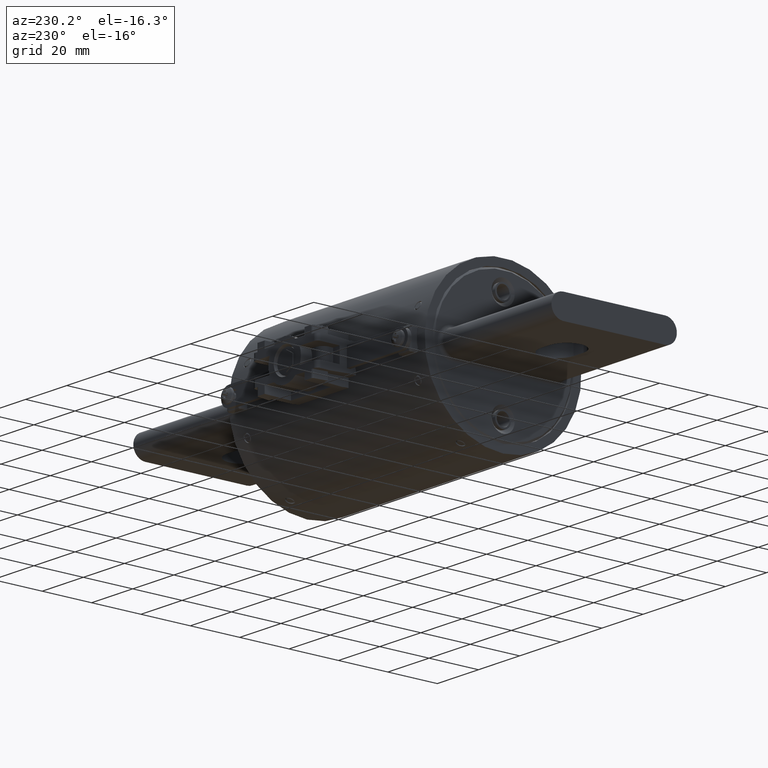
[diagram: clean part render]
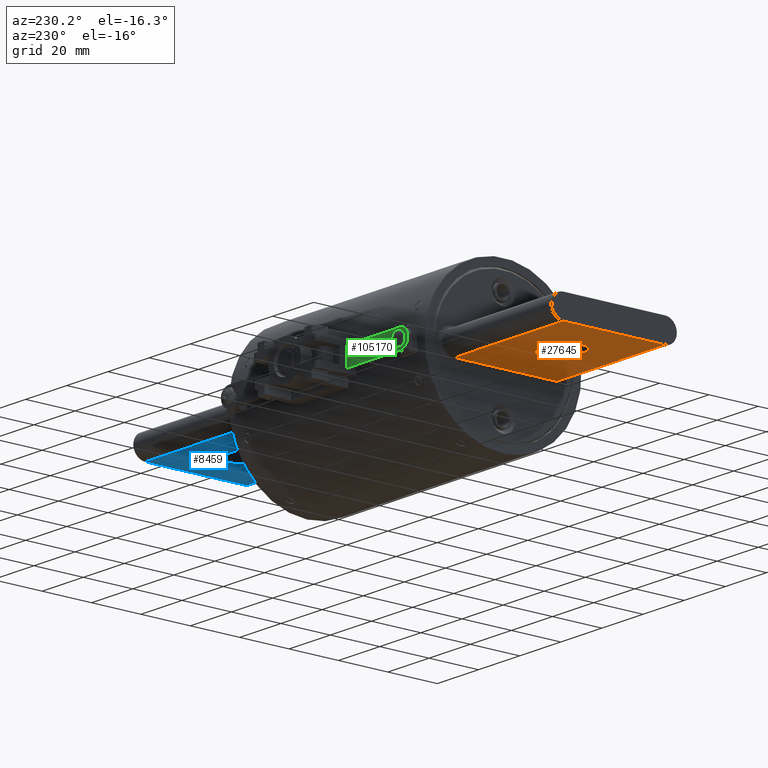
[diagram: same view with three faces highlighted in distinct colors, each labeled with its STEP entity id]
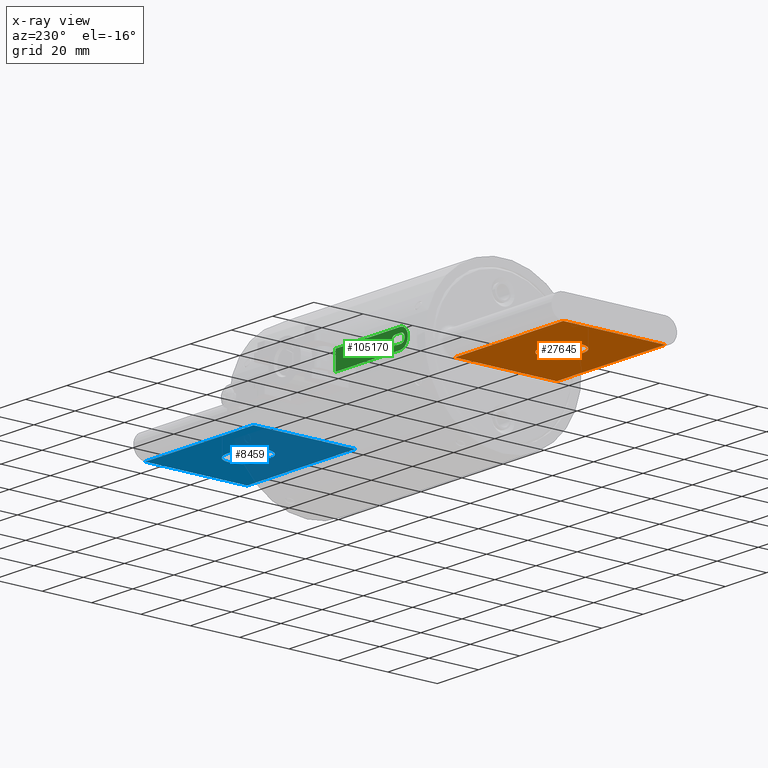
[diagram: x-ray of the same camera — body ghosted, the three highlighted faces saturated]
A machine part, auxiliary view with three faces highlighted in distinct colors.
The next image is the same camera in x-ray (body ghosted, the three faces saturated) — at least one of them is partly hidden behind the body in this view.
Their STEP definitions:

[orange] entity #27645 — the highlighted planar face has unit normal (-0, 0, 1).
#40 = CARTESIAN_POINT ( 'NONE',  ( -2.124999999999997800, -0.8125000000000007800, -0.1875000000000196200 ) ) ;
#3193 = VECTOR ( 'NONE', #130843, 39.37007874015748100 ) ;
#4480 = ORIENTED_EDGE ( 'NONE', *, *, #137972, .F. ) ;
#5079 = CARTESIAN_POINT ( 'NONE',  ( -1.030999999999997900, -0.2660000000000006200, -0.1875000000000100500 ) ) ;
#6596 = LINE ( 'NONE', #76395, #3193 ) ;
#8107 = EDGE_CURVE ( 'NONE', #44071, #102888, #70710, .T. ) ;
#9801 = VERTEX_POINT ( 'NONE', #106414 ) ;
#10438 = DIRECTION ( 'NONE',  ( -1.047444401652940800E-014, 3.491481338843133000E-015, 1.000000000000000000 ) ) ;
#12294 = CARTESIAN_POINT ( 'NONE',  ( -1.218999999999998100, -0.2660000000000006200, -0.1875000000000120500 ) ) ;
#16265 = VERTEX_POINT ( 'NONE', #21702 ) ;
#16715 = ORIENTED_EDGE ( 'NONE', *, *, #131360, .F. ) ;
#18241 = VERTEX_POINT ( 'NONE', #47215 ) ;
#18271 = CARTESIAN_POINT ( 'NONE',  ( -2.124999999999997800, 0.8124999999999992200, -0.1875000000000253100 ) ) ;
#21702 = CARTESIAN_POINT ( 'NONE',  ( -0.04999999999999805300, 0.8124999999999992200, -0.1875000000000035500 ) ) ;
#22355 = CARTESIAN_POINT ( 'NONE',  ( -0.04999999999999805300, -0.8125000000000007800, -0.1874999999999978600 ) ) ;
#23740 = AXIS2_PLACEMENT_3D ( 'NONE', #29947, #105837, #40838 ) ;
#24064 = VECTOR ( 'NONE', #33268, 39.37007874015748100 ) ;
#25249 = LINE ( 'NONE', #40, #82989 ) ;
#25641 = DIRECTION ( 'NONE',  ( 1.000000000000000000, 5.175990528556192900E-030, 1.047444401652940800E-014 ) ) ;
#27645 = ADVANCED_FACE ( 'NONE', ( #39520, #122670 ), #96719, .F. ) ;
#29947 = CARTESIAN_POINT ( 'NONE',  ( -1.030999999999997900, -6.546527510330934200E-016, -0.1875000000000109600 ) ) ;
#30498 = EDGE_CURVE ( 'NONE', #60713, #16265, #79932, .T. ) ;
#30793 = ORIENTED_EDGE ( 'NONE', *, *, #57692, .F. ) ;
#33268 = DIRECTION ( 'NONE',  ( -4.304131397916473100E-029, -1.000000000000000000, 3.491481338843133000E-015 ) ) ;
#34362 = CARTESIAN_POINT ( 'NONE',  ( -1.218999999999998100, -6.546527510330939100E-016, -0.1875000000000129600 ) ) ;
#39520 = FACE_BOUND ( 'NONE', #91521, .T. ) ;
#39538 = AXIS2_PLACEMENT_3D ( 'NONE', #75397, #10438, #86321 ) ;
#40838 = DIRECTION ( 'NONE',  ( 1.000000000000000000, 5.016927212896713300E-030, 1.052685787032282000E-014 ) ) ;
#41436 = CARTESIAN_POINT ( 'NONE',  ( -1.030999999999997900, 0.2659999999999993500, -0.1875000000000119100 ) ) ;
#44046 = CIRCLE ( 'NONE', #56456, 0.2659999999999999600 ) ;
#44071 = VERTEX_POINT ( 'NONE', #41436 ) ;
#44236 = VECTOR ( 'NONE', #101815, 39.37007874015748100 ) ;
#44925 = ORIENTED_EDGE ( 'NONE', *, *, #97193, .F. ) ;
#45254 = DIRECTION ( 'NONE',  ( 1.000000000000000000, 5.016927212896713300E-030, 1.052685787032282000E-014 ) ) ;
#47002 = CARTESIAN_POINT ( 'NONE',  ( -2.124999999999997800, 0.8124999999999992200, -0.1875000000000253100 ) ) ;
#47215 = CARTESIAN_POINT ( 'NONE',  ( -1.218999999999998100, 0.2659999999999994000, -0.1875000000000138800 ) ) ;
#56241 = VERTEX_POINT ( 'NONE', #12294 ) ;
#56456 = AXIS2_PLACEMENT_3D ( 'NONE', #34362, #110269, #45254 ) ;
#57692 = EDGE_CURVE ( 'NONE', #135122, #9801, #25249, .T. ) ;
#60713 = VERTEX_POINT ( 'NONE', #18271 ) ;
#64344 = ORIENTED_EDGE ( 'NONE', *, *, #89829, .T. ) ;
#70710 = CIRCLE ( 'NONE', #23740, 0.2659999999999999600 ) ;
#71217 = ORIENTED_EDGE ( 'NONE', *, *, #8107, .F. ) ;
#72375 = ORIENTED_EDGE ( 'NONE', *, *, #96438, .F. ) ;
#72400 = CARTESIAN_POINT ( 'NONE',  ( -1.218999999999998100, 0.2659999999999994000, -0.1875000000000138800 ) ) ;
#75397 = CARTESIAN_POINT ( 'NONE',  ( -2.124999999999997800, -0.8125000000000007800, -0.1875000000000196200 ) ) ;
#76395 = CARTESIAN_POINT ( 'NONE',  ( -1.218999999999998100, -0.2660000000000006200, -0.1875000000000120500 ) ) ;
#79932 = LINE ( 'NONE', #47002, #134140 ) ;
#82982 = ORIENTED_EDGE ( 'NONE', *, *, #30498, .T. ) ;
#82989 = VECTOR ( 'NONE', #140278, 39.37007874015748100 ) ;
#86321 = DIRECTION ( 'NONE',  ( -1.000000000000000000, -5.175990528556192900E-030, -1.047444401652940800E-014 ) ) ;
#86377 = EDGE_LOOP ( 'NONE', ( #82982, #64344, #30793, #72375 ) ) ;
#89829 = EDGE_CURVE ( 'NONE', #16265, #9801, #107250, .T. ) ;
#90871 = CARTESIAN_POINT ( 'NONE',  ( -2.124999999999997800, -0.8125000000000007800, -0.1875000000000196200 ) ) ;
#91521 = EDGE_LOOP ( 'NONE', ( #16715, #4480, #44925, #71217 ) ) ;
#96438 = EDGE_CURVE ( 'NONE', #60713, #135122, #127407, .T. ) ;
#96719 = PLANE ( 'NONE',  #39538 ) ;
#97193 = EDGE_CURVE ( 'NONE', #102888, #56241, #6596, .T. ) ;
#97718 = LINE ( 'NONE', #72400, #126532 ) ;
#101815 = DIRECTION ( 'NONE',  ( -4.304131397916473100E-029, -1.000000000000000000, 3.491481338843133000E-015 ) ) ;
#102888 = VERTEX_POINT ( 'NONE', #5079 ) ;
#105837 = DIRECTION ( 'NONE',  ( 1.047444401652939400E-014, -3.491481338843133400E-015, -1.000000000000000000 ) ) ;
#106414 = CARTESIAN_POINT ( 'NONE',  ( -0.04999999999999805300, -0.8125000000000007800, -0.1874999999999978600 ) ) ;
#107250 = LINE ( 'NONE', #22355, #24064 ) ;
#110269 = DIRECTION ( 'NONE',  ( 1.047444401652939400E-014, -3.491481338843133400E-015, -1.000000000000000000 ) ) ;
#111363 = CARTESIAN_POINT ( 'NONE',  ( -2.124999999999997800, -0.8125000000000007800, -0.1875000000000196200 ) ) ;
#122670 = FACE_OUTER_BOUND ( 'NONE', #86377, .T. ) ;
#126532 = VECTOR ( 'NONE', #137239, 39.37007874015748100 ) ;
#127407 = LINE ( 'NONE', #90871, #44236 ) ;
#130843 = DIRECTION ( 'NONE',  ( -1.000000000000000000, -5.175990528556192900E-030, -1.047444401652940800E-014 ) ) ;
#131360 = EDGE_CURVE ( 'NONE', #18241, #44071, #97718, .T. ) ;
#134140 = VECTOR ( 'NONE', #25641, 39.37007874015748100 ) ;
#135122 = VERTEX_POINT ( 'NONE', #111363 ) ;
#137239 = DIRECTION ( 'NONE',  ( 1.000000000000000000, -3.632776587319446900E-016, 1.047444401652941000E-014 ) ) ;
#137972 = EDGE_CURVE ( 'NONE', #56241, #18241, #44046, .T. ) ;
#140278 = DIRECTION ( 'NONE',  ( 1.000000000000000000, 5.175990528556192900E-030, 1.047444401652940800E-014 ) ) ;

[blue] entity #8459 — the highlighted planar face has unit normal (0, -0, 1).
#1190 = ORIENTED_EDGE ( 'NONE', *, *, #54128, .T. ) ;
#1974 = DIRECTION ( 'NONE',  ( 1.023891520009880200E-016, -2.751677744369212900E-032, 1.000000000000000000 ) ) ;
#5203 = CARTESIAN_POINT ( 'NONE',  ( 4.781000000000000600, -0.2660000000000000700, -0.1875000000000616700 ) ) ;
#7477 = VERTEX_POINT ( 'NONE', #17804 ) ;
#8459 = ADVANCED_FACE ( 'NONE', ( #75937, #46996 ), #44583, .F. ) ;
#11441 = CARTESIAN_POINT ( 'NONE',  ( 4.969000000000000300, 0.2659999999999998500, -0.1875000000000617300 ) ) ;
#12807 = VECTOR ( 'NONE', #52706, 39.37007874015748100 ) ;
#17804 = CARTESIAN_POINT ( 'NONE',  ( 5.875000000000000000, 0.8124999999999998900, -0.1875000000000616500 ) ) ;
#18193 = CARTESIAN_POINT ( 'NONE',  ( 5.875000000000000000, -0.8125000000000001100, -0.1875000000000616500 ) ) ;
#18355 = VECTOR ( 'NONE', #89663, 39.37007874015748100 ) ;
#19350 = DIRECTION ( 'NONE',  ( -6.718675002647231700E-017, 1.000000000000000000, -2.751677744369046000E-032 ) ) ;
#22194 = EDGE_LOOP ( 'NONE', ( #1190, #132629, #76787, #68336 ) ) ;
#22218 = CARTESIAN_POINT ( 'NONE',  ( 4.969000000000000300, -0.2660000000000002400, -0.1875000000000617300 ) ) ;
#24734 = CIRCLE ( 'NONE', #133130, 0.2659999999999998500 ) ;
#29312 = EDGE_CURVE ( 'NONE', #109444, #67301, #109212, .T. ) ;
#31084 = VECTOR ( 'NONE', #95616, 39.37007874015748100 ) ;
#34914 = ORIENTED_EDGE ( 'NONE', *, *, #119446, .T. ) ;
#34992 = EDGE_CURVE ( 'NONE', #57451, #97186, #24734, .T. ) ;
#38132 = ORIENTED_EDGE ( 'NONE', *, *, #79315, .F. ) ;
#43312 = DIRECTION ( 'NONE',  ( 1.023891520011291200E-016, -2.751677744368264800E-032, 1.000000000000000000 ) ) ;
#44583 = PLANE ( 'NONE',  #93753 ) ;
#46412 = CARTESIAN_POINT ( 'NONE',  ( 4.781000000000000600, 0.2659999999999998500, -0.1875000000000616700 ) ) ;
#46527 = LINE ( 'NONE', #95204, #129731 ) ;
#46996 = FACE_OUTER_BOUND ( 'NONE', #89753, .T. ) ;
#47604 = VECTOR ( 'NONE', #94928, 39.37007874015748100 ) ;
#49040 = CARTESIAN_POINT ( 'NONE',  ( 5.875000000000000000, 0.8124999999999998900, -0.1875000000000616500 ) ) ;
#50996 = ORIENTED_EDGE ( 'NONE', *, *, #130349, .T. ) ;
#51020 = LINE ( 'NONE', #84052, #47604 ) ;
#51392 = ORIENTED_EDGE ( 'NONE', *, *, #68819, .F. ) ;
#52706 = DIRECTION ( 'NONE',  ( 1.000000000000000000, 6.718675002655119100E-017, -1.023891520009880200E-016 ) ) ;
#53572 = DIRECTION ( 'NONE',  ( 1.023891520011291200E-016, -2.751677744368264800E-032, 1.000000000000000000 ) ) ;
#53719 = CARTESIAN_POINT ( 'NONE',  ( 3.799999999999999800, 0.8124999999999997800, -0.1875000000000615900 ) ) ;
#54128 = EDGE_CURVE ( 'NONE', #67301, #57451, #99278, .T. ) ;
#56110 = CARTESIAN_POINT ( 'NONE',  ( 3.800000000000000300, -0.8125000000000003300, -0.1875000000000615900 ) ) ;
#57451 = VERTEX_POINT ( 'NONE', #22218 ) ;
#66873 = CARTESIAN_POINT ( 'NONE',  ( 5.875000000000000000, -0.8125000000000001100, -0.1875000000000616500 ) ) ;
#67301 = VERTEX_POINT ( 'NONE', #5203 ) ;
#68336 = ORIENTED_EDGE ( 'NONE', *, *, #29312, .T. ) ;
#68819 = EDGE_CURVE ( 'NONE', #104650, #7477, #46527, .T. ) ;
#73481 = LINE ( 'NONE', #49040, #102273 ) ;
#75937 = FACE_BOUND ( 'NONE', #22194, .T. ) ;
#76087 = LINE ( 'NONE', #78719, #18355 ) ;
#76787 = ORIENTED_EDGE ( 'NONE', *, *, #110456, .T. ) ;
#77778 = DIRECTION ( 'NONE',  ( -1.000000000000000000, -6.718675002655119100E-017, 1.023891520009880200E-016 ) ) ;
#77818 = VERTEX_POINT ( 'NONE', #56110 ) ;
#78719 = CARTESIAN_POINT ( 'NONE',  ( 3.799999999999999800, 0.8124999999999997800, -0.1875000000000615900 ) ) ;
#79315 = EDGE_CURVE ( 'NONE', #7477, #104850, #73481, .T. ) ;
#84052 = CARTESIAN_POINT ( 'NONE',  ( 5.875000000000000000, 0.2660000000000002400, -0.1875000000000616500 ) ) ;
#85238 = CARTESIAN_POINT ( 'NONE',  ( 5.875000000000000000, -0.8125000000000001100, -0.1875000000000616500 ) ) ;
#89663 = DIRECTION ( 'NONE',  ( -6.718675002647231700E-017, 1.000000000000000000, -2.751677744369046000E-032 ) ) ;
#89753 = EDGE_LOOP ( 'NONE', ( #34914, #50996, #38132, #51392 ) ) ;
#93753 = AXIS2_PLACEMENT_3D ( 'NONE', #66873, #1974, #77778 ) ;
#94928 = DIRECTION ( 'NONE',  ( -1.000000000000000000, -4.304644087585011000E-016, 1.023891520009880200E-016 ) ) ;
#95204 = CARTESIAN_POINT ( 'NONE',  ( 5.875000000000000000, -0.8125000000000001100, -0.1875000000000616500 ) ) ;
#95616 = DIRECTION ( 'NONE',  ( -1.000000000000000000, -6.718675002655119100E-017, 1.023891520009880200E-016 ) ) ;
#97186 = VERTEX_POINT ( 'NONE', #11441 ) ;
#99278 = LINE ( 'NONE', #139409, #12807 ) ;
#102273 = VECTOR ( 'NONE', #114058, 39.37007874015748100 ) ;
#104650 = VERTEX_POINT ( 'NONE', #18193 ) ;
#104850 = VERTEX_POINT ( 'NONE', #53719 ) ;
#108275 = CARTESIAN_POINT ( 'NONE',  ( 4.969000000000000300, -9.199468167722894700E-017, -0.1875000000000617300 ) ) ;
#109212 = CIRCLE ( 'NONE', #138791, 0.2659999999999998500 ) ;
#109444 = VERTEX_POINT ( 'NONE', #46412 ) ;
#110456 = EDGE_CURVE ( 'NONE', #97186, #109444, #51020, .T. ) ;
#114058 = DIRECTION ( 'NONE',  ( -1.000000000000000000, -6.718675002655119100E-017, 1.023891520009880200E-016 ) ) ;
#114267 = LINE ( 'NONE', #85238, #31084 ) ;
#118556 = CARTESIAN_POINT ( 'NONE',  ( 4.781000000000000600, -1.046257906822207300E-016, -0.1875000000000616700 ) ) ;
#119214 = DIRECTION ( 'NONE',  ( -1.000000000000000000, -6.718675002655122800E-017, 1.283763154917417700E-016 ) ) ;
#119446 = EDGE_CURVE ( 'NONE', #104650, #77818, #114267, .T. ) ;
#129427 = DIRECTION ( 'NONE',  ( -1.000000000000000000, -6.718675002655122800E-017, 1.283763154917417700E-016 ) ) ;
#129731 = VECTOR ( 'NONE', #19350, 39.37007874015748100 ) ;
#130349 = EDGE_CURVE ( 'NONE', #77818, #104850, #76087, .T. ) ;
#132629 = ORIENTED_EDGE ( 'NONE', *, *, #34992, .T. ) ;
#133130 = AXIS2_PLACEMENT_3D ( 'NONE', #108275, #43312, #119214 ) ;
#138791 = AXIS2_PLACEMENT_3D ( 'NONE', #118556, #53572, #129427 ) ;
#139409 = CARTESIAN_POINT ( 'NONE',  ( 5.875000000000000000, -0.2660000000000001300, -0.1875000000000616500 ) ) ;

[green] entity #105170 — the highlighted planar face has unit normal (-0, -1, 0).
#5280 = DIRECTION ( 'NONE',  ( -1.000000000000000000, 3.381628675776319700E-018, -3.593048753054327700E-033 ) ) ;
#5806 = CIRCLE ( 'NONE', #74715, 0.07000000000000000700 ) ;
#10759 = LINE ( 'NONE', #58923, #93836 ) ;
#12719 = FACE_BOUND ( 'NONE', #115311, .T. ) ;
#12848 = ORIENTED_EDGE ( 'NONE', *, *, #95447, .F. ) ;
#14075 = VERTEX_POINT ( 'NONE', #15497 ) ;
#14376 = LINE ( 'NONE', #40105, #39749 ) ;
#15497 = CARTESIAN_POINT ( 'NONE',  ( 1.468628826300588400, 1.445273281310191200, -0.1480000000000001300 ) ) ;
#20498 = EDGE_CURVE ( 'NONE', #87316, #26416, #5806, .T. ) ;
#20861 = CARTESIAN_POINT ( 'NONE',  ( 0.3295000000000007400, 1.445273281310192900, -0.07000000000000000700 ) ) ;
#21148 = ORIENTED_EDGE ( 'NONE', *, *, #59664, .F. ) ;
#26416 = VERTEX_POINT ( 'NONE', #20861 ) ;
#26583 = CIRCLE ( 'NONE', #130880, 0.07000000000000000700 ) ;
#27363 = CARTESIAN_POINT ( 'NONE',  ( 0.2364017407724567600, 1.445273281310192900, -0.1480000000000001300 ) ) ;
#29410 = LINE ( 'NONE', #62732, #54859 ) ;
#29543 = CARTESIAN_POINT ( 'NONE',  ( 0.2195000000000005600, 1.445273281310192900, -0.07000000000000000700 ) ) ;
#30828 = CARTESIAN_POINT ( 'NONE',  ( 1.468628826300588400, 1.445273281310191200, 0.1479999999999998800 ) ) ;
#32135 = EDGE_CURVE ( 'NONE', #40743, #87316, #35165, .T. ) ;
#33873 = DIRECTION ( 'NONE',  ( 1.000000000000000000, 9.374304259501944500E-018, 3.549732459326507900E-033 ) ) ;
#34316 = CARTESIAN_POINT ( 'NONE',  ( 0.2195000000000005600, 1.445273281310192900, 0.07000000000000000700 ) ) ;
#34439 = VERTEX_POINT ( 'NONE', #41611 ) ;
#35165 = LINE ( 'NONE', #34316, #92883 ) ;
#38043 = CARTESIAN_POINT ( 'NONE',  ( 0.08840174077245653600, 1.445273281310192900, 0.1479999999999998800 ) ) ;
#38460 = CARTESIAN_POINT ( 'NONE',  ( 0.2195000000000005600, 1.445273281310192900, 0.0000000000000000000 ) ) ;
#39749 = VECTOR ( 'NONE', #105139, 39.37007874015748100 ) ;
#40105 = CARTESIAN_POINT ( 'NONE',  ( 0.08840174077245653600, 1.445273281310192900, -0.1480000000000001300 ) ) ;
#40743 = VERTEX_POINT ( 'NONE', #49244 ) ;
#41611 = CARTESIAN_POINT ( 'NONE',  ( 0.2364017407724567600, 1.445273281310192900, 0.1479999999999998800 ) ) ;
#45083 = ORIENTED_EDGE ( 'NONE', *, *, #78050, .F. ) ;
#46896 = CARTESIAN_POINT ( 'NONE',  ( 0.3295000000000007400, 1.445273281310192900, 0.0000000000000000000 ) ) ;
#46906 = CARTESIAN_POINT ( 'NONE',  ( 0.2364017407724567600, 1.445273281310192900, 8.537024980200822600E-018 ) ) ;
#48327 = AXIS2_PLACEMENT_3D ( 'NONE', #135056, #70229, #5280 ) ;
#49192 = AXIS2_PLACEMENT_3D ( 'NONE', #46906, #122796, #57835 ) ;
#49244 = CARTESIAN_POINT ( 'NONE',  ( 0.2195000000000005600, 1.445273281310192900, 0.07000000000000000700 ) ) ;
#49368 = DIRECTION ( 'NONE',  ( 1.000000000000000000, 0.0000000000000000000, 3.549732459326508600E-033 ) ) ;
#51157 = ORIENTED_EDGE ( 'NONE', *, *, #66436, .F. ) ;
#54859 = VECTOR ( 'NONE', #73673, 39.37007874015748100 ) ;
#57824 = DIRECTION ( 'NONE',  ( 1.000000000000000000, 0.0000000000000000000, 3.549732459326508600E-033 ) ) ;
#57835 = DIRECTION ( 'NONE',  ( 1.000000000000000000, 0.0000000000000000000, 0.0000000000000000000 ) ) ;
#58923 = CARTESIAN_POINT ( 'NONE',  ( 1.468628826300588400, 1.445273281310191200, -0.1480000000000001300 ) ) ;
#59664 = EDGE_CURVE ( 'NONE', #81078, #14075, #14376, .T. ) ;
#62732 = CARTESIAN_POINT ( 'NONE',  ( 0.2195000000000005600, 1.445273281310192900, -0.07000000000000000700 ) ) ;
#66110 = ORIENTED_EDGE ( 'NONE', *, *, #32135, .F. ) ;
#66436 = EDGE_CURVE ( 'NONE', #34439, #81078, #75317, .T. ) ;
#69575 = LINE ( 'NONE', #38043, #127257 ) ;
#69764 = PLANE ( 'NONE',  #48327 ) ;
#70229 = DIRECTION ( 'NONE',  ( -3.381628675776319700E-018, -1.000000000000000000, 3.395776220179304100E-018 ) ) ;
#73673 = DIRECTION ( 'NONE',  ( -1.000000000000000000, -9.374304259501944500E-018, -3.549732459326507900E-033 ) ) ;
#74715 = AXIS2_PLACEMENT_3D ( 'NONE', #46896, #122787, #57824 ) ;
#75317 = CIRCLE ( 'NONE', #49192, 0.1479999999999999600 ) ;
#76199 = EDGE_LOOP ( 'NONE', ( #21148, #51157, #122888, #105642 ) ) ;
#78050 = EDGE_CURVE ( 'NONE', #90634, #40743, #26583, .T. ) ;
#81078 = VERTEX_POINT ( 'NONE', #27363 ) ;
#87316 = VERTEX_POINT ( 'NONE', #123312 ) ;
#90422 = EDGE_CURVE ( 'NONE', #34439, #113737, #69575, .T. ) ;
#90634 = VERTEX_POINT ( 'NONE', #29543 ) ;
#92371 = FACE_OUTER_BOUND ( 'NONE', #76199, .T. ) ;
#92883 = VECTOR ( 'NONE', #33873, 39.37007874015748100 ) ;
#93836 = VECTOR ( 'NONE', #134243, 39.37007874015748100 ) ;
#94309 = ORIENTED_EDGE ( 'NONE', *, *, #20498, .F. ) ;
#95447 = EDGE_CURVE ( 'NONE', #26416, #90634, #29410, .T. ) ;
#105139 = DIRECTION ( 'NONE',  ( 1.000000000000000000, -3.381628675776294700E-018, 3.593048753054329100E-033 ) ) ;
#105170 = ADVANCED_FACE ( 'NONE', ( #12719, #92371 ), #69764, .F. ) ;
#105642 = ORIENTED_EDGE ( 'NONE', *, *, #134347, .F. ) ;
#113737 = VERTEX_POINT ( 'NONE', #30828 ) ;
#114006 = DIRECTION ( 'NONE',  ( 1.000000000000000000, -3.381628675776294700E-018, 3.593048753054329100E-033 ) ) ;
#114400 = DIRECTION ( 'NONE',  ( -9.374304259501993800E-018, 1.000000000000000000, -3.395776220179304100E-018 ) ) ;
#115311 = EDGE_LOOP ( 'NONE', ( #66110, #45083, #12848, #94309 ) ) ;
#122787 = DIRECTION ( 'NONE',  ( -9.374304259501993800E-018, 1.000000000000000000, -3.395776220179304100E-018 ) ) ;
#122796 = DIRECTION ( 'NONE',  ( 9.374304259501969200E-018, -1.000000000000000000, 3.395776220179291800E-018 ) ) ;
#122888 = ORIENTED_EDGE ( 'NONE', *, *, #90422, .T. ) ;
#123312 = CARTESIAN_POINT ( 'NONE',  ( 0.3295000000000007400, 1.445273281310192900, 0.07000000000000000700 ) ) ;
#127257 = VECTOR ( 'NONE', #114006, 39.37007874015748100 ) ;
#130880 = AXIS2_PLACEMENT_3D ( 'NONE', #38460, #114400, #49368 ) ;
#134243 = DIRECTION ( 'NONE',  ( 3.133869811460195000E-033, 3.395776220179073000E-018, 1.000000000000000000 ) ) ;
#134347 = EDGE_CURVE ( 'NONE', #14075, #113737, #10759, .T. ) ;
#135056 = CARTESIAN_POINT ( 'NONE',  ( 0.08840174077245653600, 1.445273281310192900, -0.1480000000000001300 ) ) ;